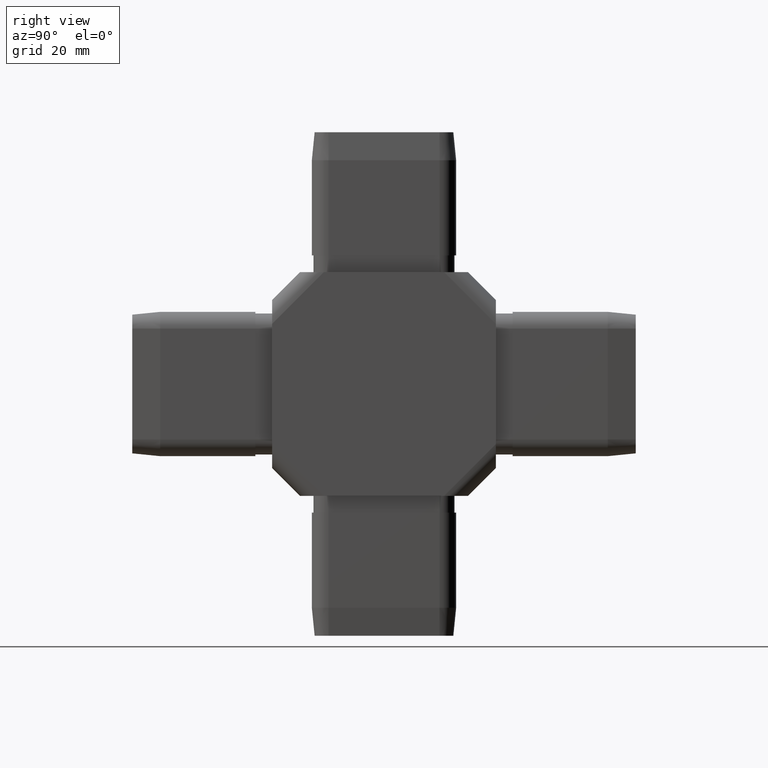
[diagram: clean part render]
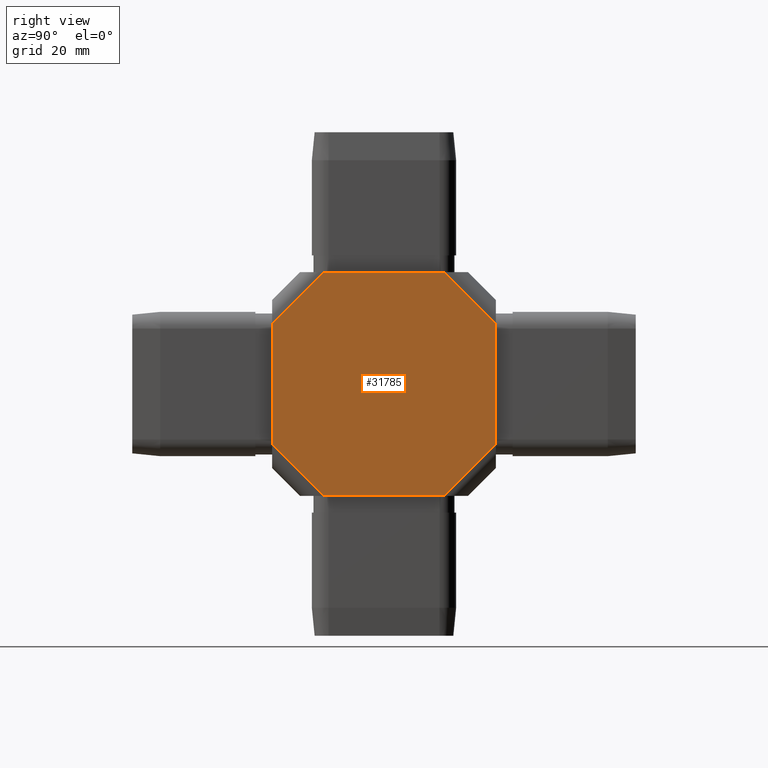
[diagram: same view with one face highlighted and labeled with its STEP entity id]
A machine part, right view. The second image highlights one B-rep face of the part: STEP entity #31785.
In plain terms, the highlighted planar face has unit normal (1, 0, -0).
Its self-contained STEP definition (entity closure, byte-faithful):
#10 = CARTESIAN_POINT ( 'NONE',  ( 15.00000000000000000, -15.37867965644028300, -15.37867965644043300 ) ) ;
#736 = EDGE_CURVE ( 'NONE', #16580, #17894, #12196, .T. ) ;
#2291 = EDGE_CURVE ( 'NONE', #17526, #26451, #25868, .T. ) ;
#2483 = VERTEX_POINT ( 'NONE', #25422 ) ;
#4729 = DIRECTION ( 'NONE',  ( -0.0000000000000000000, -0.0000000000000000000, -1.000000000000000000 ) ) ;
#4978 = CARTESIAN_POINT ( 'NONE',  ( 15.00000000000000000, 20.00000000000000400, -20.00000000000000000 ) ) ;
#6060 = LINE ( 'NONE', #27750, #26207 ) ;
#6323 = ORIENTED_EDGE ( 'NONE', *, *, #15492, .F. ) ;
#6774 = CARTESIAN_POINT ( 'NONE',  ( 15.00000000000000000, 20.00000000000000400, 20.00000000000000000 ) ) ;
#7621 = DIRECTION ( 'NONE',  ( 0.0000000000000000000, -0.7071067811865489100, 0.7071067811865460200 ) ) ;
#7899 = EDGE_CURVE ( 'NONE', #26499, #17526, #20124, .T. ) ;
#9599 = CARTESIAN_POINT ( 'NONE',  ( 15.00000000000000000, 4.621320343559592200, 35.37867965644036900 ) ) ;
#10053 = EDGE_CURVE ( 'NONE', #2483, #30070, #12914, .T. ) ;
#10315 = DIRECTION ( 'NONE',  ( 0.0000000000000000000, -1.000000000000000000, 0.0000000000000000000 ) ) ;
#10747 = ORIENTED_EDGE ( 'NONE', *, *, #7899, .T. ) ;
#11392 = DIRECTION ( 'NONE',  ( 1.000000000000000000, 0.0000000000000000000, -0.0000000000000000000 ) ) ;
#11829 = ORIENTED_EDGE ( 'NONE', *, *, #14111, .T. ) ;
#12131 = CARTESIAN_POINT ( 'NONE',  ( 15.00000000000000000, -19.99999999999999600, -10.75735931288073200 ) ) ;
#12196 = LINE ( 'NONE', #33226, #27899 ) ;
#12524 = DIRECTION ( 'NONE',  ( -0.0000000000000000000, 0.7071067811865489100, -0.7071067811865460200 ) ) ;
#12589 = ORIENTED_EDGE ( 'NONE', *, *, #736, .T. ) ;
#12717 = ORIENTED_EDGE ( 'NONE', *, *, #32456, .T. ) ;
#12914 = LINE ( 'NONE', #4978, #32656 ) ;
#13967 = ORIENTED_EDGE ( 'NONE', *, *, #10053, .F. ) ;
#14111 = EDGE_CURVE ( 'NONE', #17894, #26499, #6060, .T. ) ;
#14298 = CARTESIAN_POINT ( 'NONE',  ( 15.00000000000000000, -10.75735931288073600, 20.00000000000000000 ) ) ;
#14898 = DIRECTION ( 'NONE',  ( 0.0000000000000000000, -1.000000000000000000, 0.0000000000000000000 ) ) ;
#15492 = EDGE_CURVE ( 'NONE', #16580, #28405, #22537, .T. ) ;
#16565 = DIRECTION ( 'NONE',  ( -0.0000000000000000000, 0.0000000000000000000, -1.000000000000000000 ) ) ;
#16580 = VERTEX_POINT ( 'NONE', #28818 ) ;
#16601 = VECTOR ( 'NONE', #30357, 1000.000000000000100 ) ;
#17526 = VERTEX_POINT ( 'NONE', #18603 ) ;
#17785 = VECTOR ( 'NONE', #4729, 1000.000000000000000 ) ;
#17894 = VERTEX_POINT ( 'NONE', #22612 ) ;
#18603 = CARTESIAN_POINT ( 'NONE',  ( 15.00000000000000000, -19.99999999999999600, 10.75735931288071800 ) ) ;
#19904 = CARTESIAN_POINT ( 'NONE',  ( 15.00000000000000000, -10.75735931288068800, -20.00000000000000000 ) ) ;
#20051 = AXIS2_PLACEMENT_3D ( 'NONE', #21699, #11392, #16565 ) ;
#20124 = LINE ( 'NONE', #9599, #20535 ) ;
#20535 = VECTOR ( 'NONE', #23364, 1000.000000000000100 ) ;
#21699 = CARTESIAN_POINT ( 'NONE',  ( 15.00000000000000000, 20.00000000000000400, 20.00000000000000000 ) ) ;
#22191 = ORIENTED_EDGE ( 'NONE', *, *, #2291, .T. ) ;
#22537 = LINE ( 'NONE', #6774, #26974 ) ;
#22612 = CARTESIAN_POINT ( 'NONE',  ( 15.00000000000000000, 10.75735931288069700, 20.00000000000000000 ) ) ;
#23129 = FACE_OUTER_BOUND ( 'NONE', #24771, .T. ) ;
#23364 = DIRECTION ( 'NONE',  ( 0.0000000000000000000, -0.7071067811865465700, -0.7071067811865484600 ) ) ;
#23497 = LINE ( 'NONE', #27865, #16601 ) ;
#24771 = EDGE_LOOP ( 'NONE', ( #13967, #12717, #6323, #12589, #11829, #10747, #22191, #28092 ) ) ;
#25422 = CARTESIAN_POINT ( 'NONE',  ( 15.00000000000000000, 10.75735931288073200, -20.00000000000000000 ) ) ;
#25868 = LINE ( 'NONE', #33392, #17785 ) ;
#26207 = VECTOR ( 'NONE', #14898, 1000.000000000000000 ) ;
#26451 = VERTEX_POINT ( 'NONE', #12131 ) ;
#26499 = VERTEX_POINT ( 'NONE', #14298 ) ;
#26853 = PLANE ( 'NONE',  #20051 ) ;
#26974 = VECTOR ( 'NONE', #30018, 1000.000000000000000 ) ;
#27750 = CARTESIAN_POINT ( 'NONE',  ( 15.00000000000000000, 20.00000000000000400, 20.00000000000000000 ) ) ;
#27865 = CARTESIAN_POINT ( 'NONE',  ( 15.00000000000000000, 35.37867965644034000, 4.621320343559721900 ) ) ;
#27899 = VECTOR ( 'NONE', #7621, 1000.000000000000100 ) ;
#28092 = ORIENTED_EDGE ( 'NONE', *, *, #31612, .T. ) ;
#28355 = LINE ( 'NONE', #10, #29543 ) ;
#28405 = VERTEX_POINT ( 'NONE', #28832 ) ;
#28818 = CARTESIAN_POINT ( 'NONE',  ( 15.00000000000000000, 20.00000000000000400, 10.75735931288073000 ) ) ;
#28832 = CARTESIAN_POINT ( 'NONE',  ( 15.00000000000000000, 20.00000000000000400, -10.75735931288068800 ) ) ;
#29543 = VECTOR ( 'NONE', #12524, 1000.000000000000100 ) ;
#30018 = DIRECTION ( 'NONE',  ( -0.0000000000000000000, -0.0000000000000000000, -1.000000000000000000 ) ) ;
#30070 = VERTEX_POINT ( 'NONE', #19904 ) ;
#30357 = DIRECTION ( 'NONE',  ( 0.0000000000000000000, 0.7071067811865460200, 0.7071067811865489100 ) ) ;
#31612 = EDGE_CURVE ( 'NONE', #26451, #30070, #28355, .T. ) ;
#31785 = ADVANCED_FACE ( 'NONE', ( #23129 ), #26853, .T. ) ;
#32456 = EDGE_CURVE ( 'NONE', #2483, #28405, #23497, .T. ) ;
#32656 = VECTOR ( 'NONE', #10315, 1000.000000000000000 ) ;
#33226 = CARTESIAN_POINT ( 'NONE',  ( 15.00000000000000000, 15.37867965644037000, 15.37867965644034600 ) ) ;
#33392 = CARTESIAN_POINT ( 'NONE',  ( 15.00000000000000000, -19.99999999999999600, 20.00000000000000000 ) ) ;